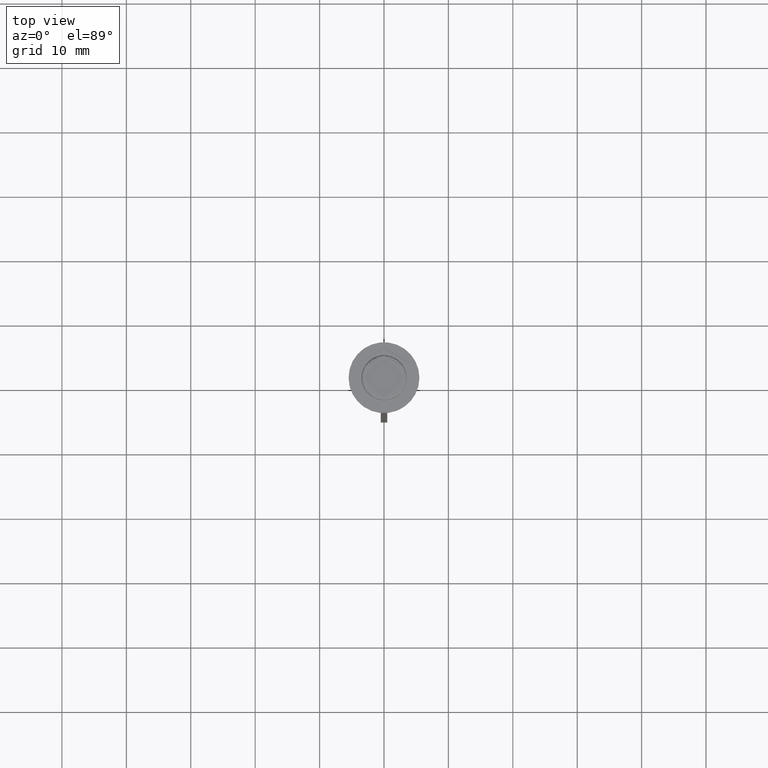
[diagram: clean part render]
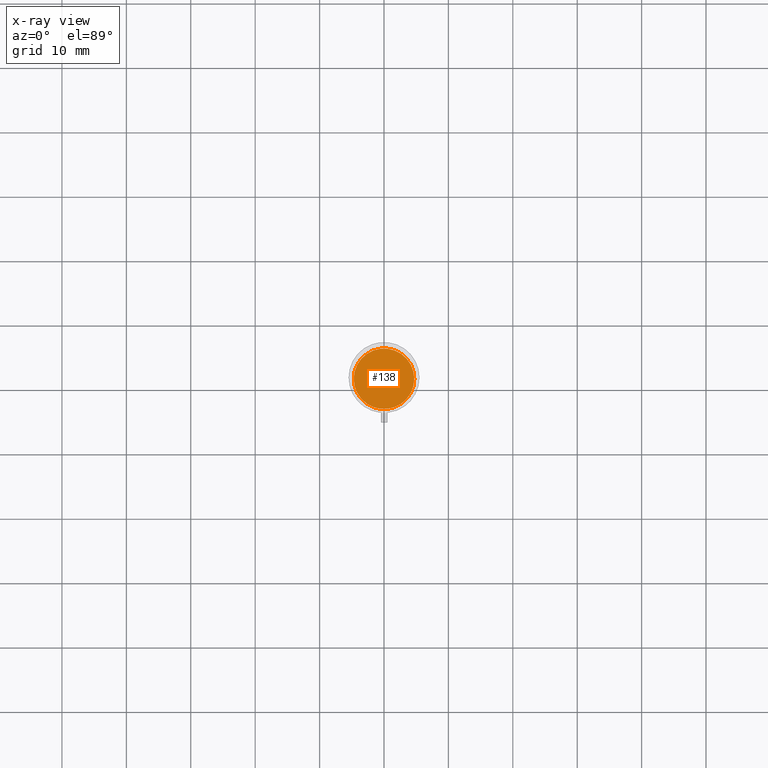
[diagram: x-ray — body ghosted, one internal face saturated and labeled with its STEP entity id]
A machine part, top view, then the same camera in x-ray: the body is ghosted and one INTERNAL B-rep face — a face not visible from any outside direction — is saturated and labeled: STEP entity #138.
In plain terms, the highlighted planar face has unit normal (0, 0, -1).
Its self-contained STEP definition (entity closure, byte-faithful):
#17 = CIRCLE ( 'NONE', #1316, 4.700000000000001066 ) ;
#138 = ADVANCED_FACE ( 'NONE', ( #1075 ), #2458, .F. ) ;
#183 = DIRECTION ( 'NONE',  ( -1.000000000000000000, 0.000000000000000000, 0.000000000000000000 ) ) ;
#264 = AXIS2_PLACEMENT_3D ( 'NONE', #672, #760, #2535 ) ;
#267 = DIRECTION ( 'NONE',  ( -0.000000000000000000, -0.000000000000000000, 1.000000000000000000 ) ) ;
#450 = VERTEX_POINT ( 'NONE', #1029 ) ;
#666 = EDGE_LOOP ( 'NONE', ( #2135, #1567 ) ) ;
#672 = CARTESIAN_POINT ( 'NONE',  ( 0.000000000000000000, 0.000000000000000000, -10.50000000000000178 ) ) ;
#673 = CARTESIAN_POINT ( 'NONE',  ( 4.700000000000001066, 5.939536975864663955E-16, -10.50000000000000178 ) ) ;
#731 = AXIS2_PLACEMENT_3D ( 'NONE', #1964, #805, #183 ) ;
#760 = DIRECTION ( 'NONE',  ( 0.000000000000000000, 0.000000000000000000, -1.000000000000000000 ) ) ;
#805 = DIRECTION ( 'NONE',  ( -0.000000000000000000, -0.000000000000000000, 1.000000000000000000 ) ) ;
#1029 = CARTESIAN_POINT ( 'NONE',  ( -4.700000000000001066, 0.000000000000000000, -10.50000000000000178 ) ) ;
#1075 = FACE_OUTER_BOUND ( 'NONE', #666, .T. ) ;
#1140 = EDGE_CURVE ( 'NONE', #450, #1675, #1346, .T. ) ;
#1316 = AXIS2_PLACEMENT_3D ( 'NONE', #2047, #267, #1853 ) ;
#1346 = CIRCLE ( 'NONE', #731, 4.700000000000001066 ) ;
#1567 = ORIENTED_EDGE ( 'NONE', *, *, #1661, .T. ) ;
#1661 = EDGE_CURVE ( 'NONE', #1675, #450, #17, .T. ) ;
#1675 = VERTEX_POINT ( 'NONE', #673 ) ;
#1853 = DIRECTION ( 'NONE',  ( -1.000000000000000000, 0.000000000000000000, 0.000000000000000000 ) ) ;
#1964 = CARTESIAN_POINT ( 'NONE',  ( 0.000000000000000000, 0.000000000000000000, -10.50000000000000178 ) ) ;
#2047 = CARTESIAN_POINT ( 'NONE',  ( 0.000000000000000000, 0.000000000000000000, -10.50000000000000178 ) ) ;
#2135 = ORIENTED_EDGE ( 'NONE', *, *, #1140, .T. ) ;
#2458 = PLANE ( 'NONE',  #264 ) ;
#2535 = DIRECTION ( 'NONE',  ( -1.000000000000000000, 0.000000000000000000, -0.000000000000000000 ) ) ;